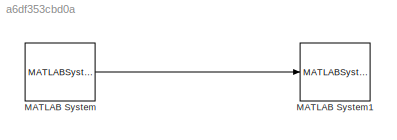
MODEL slx_a6df353cbd0a
KIND model
CONFIG AbsTol = auto
CONFIG FixedStep = auto
CONFIG MaxStep = auto
CONFIG MinStep = auto
CONFIG RelTol = 1e-3
CONFIG SampleTimeConstraint = Unconstrained
CONFIG Solver = ode45
CONFIG SolverMode = Auto
CONFIG SolverName = ode45
CONFIG StartTime = 0.0
CONFIG StopTime = 10.0
BLOCK [MATLABSystem] MATLAB System
  MaskDisplay = disp('Source');\nport_label('output',1,'y');
  MaskType = Source
  Ports = [0, 1]
  SampleTime = 0.1
  System = Source
BLOCK [MATLABSystem] MATLAB System1
  MaskDisplay = disp('Sink');\nport_label('input',1,'u');
  MaskType = Sink
  Ports = [1]
  System = Sink
LINE MATLAB System:1 -> MATLAB System1:1
